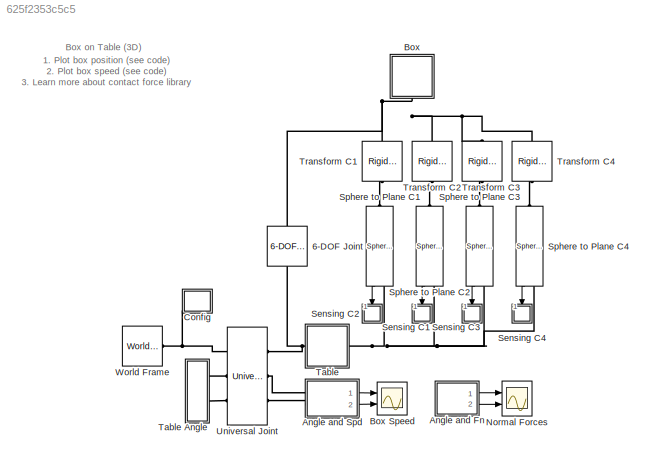
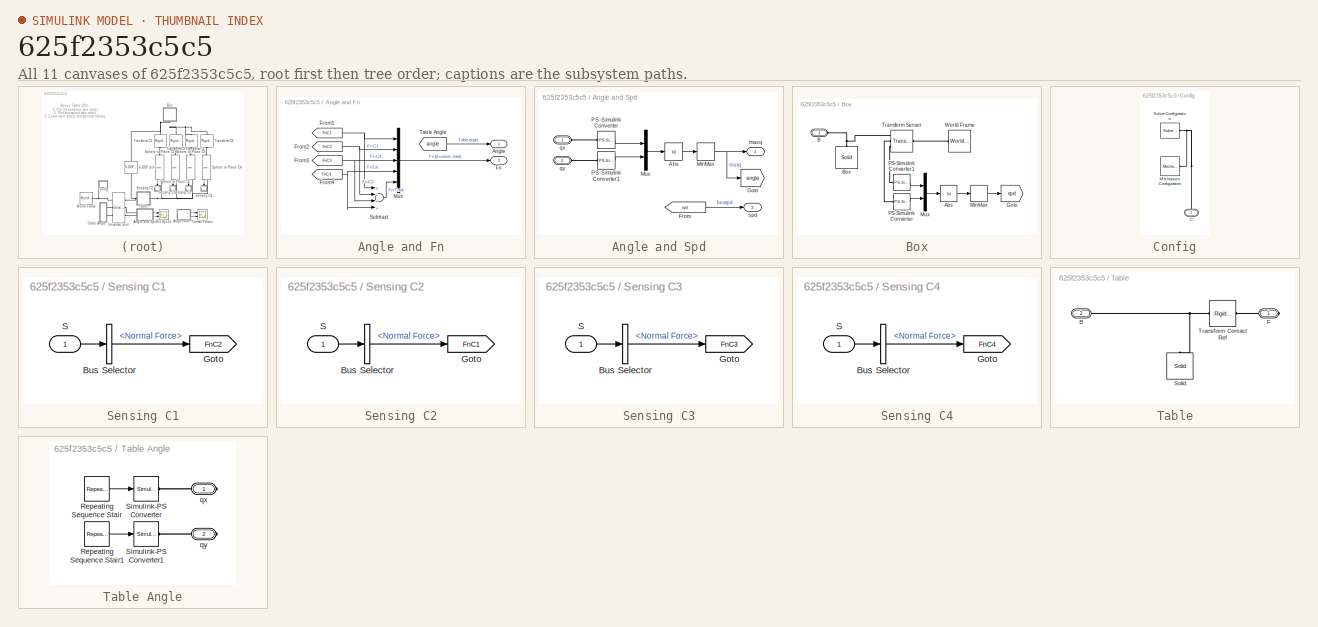
[diagram: thumbnail index - all 11 canvases of the model, root first then tree order]
MODEL slx_625f2353c5c5
KIND model
CONFIG StartFcn = tic;
CONFIG StopFcn = Elapsed_Sim_Time = toc;\ndisp(['Elapsed Sim Time = ' num2str(Elapsed_Sim_Time)]);\n
WORKSPACE source: MATLAB code (in-file)
WORKSPACE code: box.l = 0.3;
WORKSPACE code: box.h = 0.2;
WORKSPACE code: box.w = 0.3;
WORKSPACE code: table.l = 3;
WORKSPACE code: table.h = 0.1;
WORKSPACE code: table.w = 3;
WORKSPACE rad_contact_sphere = 0.005
WORKSPACE code: boxTable.friction.muk = 0.6;
WORKSPACE code: boxTable.friction.mus = 0.7;
BLOCK [Reference] 6-DOF Joint  REF=sm_lib/Joints/6-DOF Joint
  BlockFunction = simmechanics.library.joints.sixdof_joint
  ClassName = SixDofJoint
  CompositeWrenchDir = FollowerOnBase
  CompositeWrenchFrame = BaseFrame
  LogSimulationData = off
  Ports = [0, 0, 0, 0, 0, 1, 1]
  PxDampingCoefficient = 0
  PxDampingCoefficientUnits = N/(m/s)
  PxEquilibriumPosition = 0
  PxEquilibriumPositionUnits = m
  PxMotionActuationMode = ComputedMotion
  PxPositionTargetPriority = High
  PxPositionTargetSpecify = on
  PxPositionTargetValue = -0.25
  PxPositionTargetValueUnits = m
  PxSenseAcceleration = off
  PxSensePosition = off
  PxSenseTorqueForce = off
  PxSenseVelocity = off
  PxSpringStiffness = 0
  PxSpringStiffnessUnits = N/m
  PxTorqueActuationMode = NoTorque
  PxVelocityTargetPriority = High
  PxVelocityTargetSpecify = off
  PxVelocityTargetValue = 0
  PxVelocityTargetValueUnits = m/s
  PyDampingCoefficient = 0
  PyDampingCoefficientUnits = N/(m/s)
  PyEquilibriumPosition = 0
  PyEquilibriumPositionUnits = m
  PyMotionActuationMode = ComputedMotion
  PyPositionTargetPriority = High
  PyPositionTargetSpecify = on
  PyPositionTargetValue = 0.25
  PyPositionTargetValueUnits = m
  PySenseAcceleration = off
  PySensePosition = off
  PySenseTorqueForce = off
  PySenseVelocity = off
  PySpringStiffness = 0
  PySpringStiffnessUnits = N/m
  PyTorqueActuationMode = NoTorque
  PyVelocityTargetPriority = High
  PyVelocityTargetSpecify = off
  PyVelocityTargetValue = 0
  PyVelocityTargetValueUnits = m/s
  PzDampingCoefficient = 0
  PzDampingCoefficientUnits = N/(m/s)
  PzEquilibriumPosition = 0
  PzEquilibriumPositionUnits = m
  PzMotionActuationMode = ComputedMotion
  PzPositionTargetPriority = High
  PzPositionTargetSpecify = on
  PzPositionTargetValue = 2
  PzPositionTargetValueUnits = m
  PzSenseAcceleration = off
  PzSensePosition = off
  PzSenseTorqueForce = off
  PzSenseVelocity = off
  PzSpringStiffness = 0
  PzSpringStiffnessUnits = N/m
  PzTorqueActuationMode = NoTorque
  PzVelocityTargetPriority = High
  PzVelocityTargetSpecify = off
  PzVelocityTargetValue = 0
  PzVelocityTargetValueUnits = m/s
  SenseConstraintForce = off
  SenseConstraintForceX = off
  SenseConstraintForceY = off
  SenseConstraintForceZ = off
  SenseConstraintTorque = off
  SenseConstraintTorqueX = off
  SenseConstraintTorqueY = off
  SenseConstraintTorqueZ = off
  SenseTotalForce = off
  SenseTotalForceX = off
  SenseTotalForceY = off
  SenseTotalForceZ = off
  SenseTotalTorque = off
  SenseTotalTorqueX = off
  SenseTotalTorqueY = off
  SenseTotalTorqueZ = off
  SourceBlock = sm_lib/Joints/6-DOF Joint
  SourceType = 6-DOF Joint
  SphActuateTorque = off
  SphActuateTorqueX = off
  SphActuateTorqueY = off
  SphActuateTorqueZ = off
  SphActuationFrame = BaseFrame
  SphDampingCoefficient = 0
  SphDampingCoefficientUnits = N*m/(deg/s)
  SphDefPosBaseAlignAxisA = +Y
  SphDefPosBaseAlignAxisB = +Z
  SphDefPosFollAlignAxisA = +X
  SphDefPosFollAlignAxisB = +Y
  SphDefPosRotationAngle = 0.0
  SphDefPosRotationAngleUnits = deg
  SphDefPosRotationArbitraryAxis = [0 0 1]
  SphDefPosRotationMatrix = [1 0 0; 0 1 0; 0 0 1]
  SphDefPosRotationMethod = None
  SphDefPosRotationStandardAxis = +Z
  SphEqPosBaseAlignAxisA = +Y
  SphEqPosBaseAlignAxisB = +Z
  SphEqPosFollAlignAxisA = +X
  SphEqPosFollAlignAxisB = +Y
  SphEqPosRotationAngle = 0.0
  SphEqPosRotationAngleUnits = deg
  SphEqPosRotationArbitraryAxis = [0 0 1]
  SphEqPosRotationMatrix = [1 0 0; 0 1 0; 0 0 1]
  SphEqPosRotationMethod = None
  SphEqPosRotationStandardAxis = +Z
  SphMotionActuationMode = ComputedMotion
  SphPositionTargetBaseAlignAxisA = +Y
  SphPositionTargetBaseAlignAxisB = +Z
  SphPositionTargetFollAlignAxisA = +X
  SphPositionTargetFollAlignAxisB = +Y
  SphPositionTargetPriority = High
  SphPositionTargetRotationAngle = 0.0
  SphPositionTargetRotationAngleUnits = deg
  SphPositionTargetRotationArbitraryAxis = [0 0 1]
  SphPositionTargetRotationMatrix = [1 0 0; 0 1 0; 0 0 1]
  SphPositionTargetRotationMethod = None
  SphPositionTargetRotationStandardAxis = +Z
  SphPositionTargetSpecify = off
  SphSenseAcceleration = off
  SphSenseAccelerationX = off
  SphSenseAccelerationY = off
  SphSenseAccelerationZ = off
  SphSensePosition = off
  SphSenseTorqueForce = off
  SphSenseTorqueX = off
  SphSenseTorqueY = off
  SphSenseTorqueZ = off
  SphSenseVelocity = off
  SphSenseVelocityX = off
  SphSenseVelocityY = off
  SphSenseVelocityZ = off
  SphSensingFrame = BaseFrame
  SphSpringStiffness = 0
  SphSpringStiffnessUnits = N*m/deg
  SphTorqueActuationMode = NoTorque
  SphVelocityTargetInFollowerFrame = on
  SphVelocityTargetPriority = High
  SphVelocityTargetSpecify = off
  SphVelocityTargetValue = [0 0 0]
  SphVelocityTargetValueUnits = deg/s
BLOCK [SubSystem] Angle and Fn
  Ports = [0, 2]
  RequestExecContextInheritance = off
BLOCK [Outport] Angle and Fn/Angle
  IconDisplay = Port number
BLOCK [Outport] Angle and Fn/Fn
  IconDisplay = Port number
  Port = 2
BLOCK [From] Angle and Fn/From1
  GotoTag = FnC1
  TagVisibility = global
BLOCK [From] Angle and Fn/From2
  GotoTag = FnC2
  TagVisibility = global
BLOCK [From] Angle and Fn/From3
  GotoTag = FnC3
  TagVisibility = global
BLOCK [From] Angle and Fn/From4
  GotoTag = FnC4
  TagVisibility = global
BLOCK [Mux] Angle and Fn/Mux
  DisplayOption = bar
  Inputs = 5
  Ports = [5, 1]
BLOCK [Sum] Angle and Fn/Subtract
  InputSameDT = off
  Inputs = ++++
  OutDataTypeStr = Inherit: Inherit via internal rule
  Ports = [4, 1]
  SaturateOnIntegerOverflow = off
BLOCK [From] Angle and Fn/Table Angle
  GotoTag = angle
  TagVisibility = global
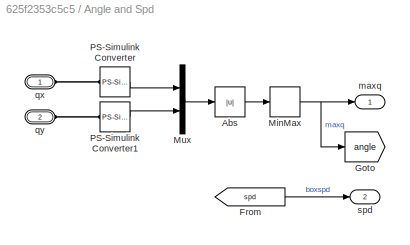
BLOCK [SubSystem] Angle and Spd
  Ports = [0, 2, 0, 0, 0, 2]
  RequestExecContextInheritance = off
BLOCK [Abs] Angle and Spd/Abs
  SaturateOnIntegerOverflow = off
  ZeroCross = off
BLOCK [From] Angle and Spd/From
  GotoTag = spd
  TagVisibility = global
BLOCK [Goto] Angle and Spd/Goto
  GotoTag = angle
  TagVisibility = global
BLOCK [MinMax] Angle and Spd/MinMax
  Function = max
  InputSameDT = off
  Ports = [1, 1]
  SaturateOnIntegerOverflow = off
  ZeroCross = off
BLOCK [Mux] Angle and Spd/Mux
  DisplayOption = bar
  Inputs = 2
  Ports = [2, 1]
BLOCK [Reference] Angle and Spd/PS-Simulink Converter  REF=nesl_utility/PS-Simulink
Converter
  AffineConversion = off
  Frequencies = []
  LeftPortType = input
  PhysicalDomain = network_engine_domain
  Ports = [0, 1, 0, 0, 0, 1]
  PseudoPeriodic = off
  RightPortType = output
  SourceBlock = nesl_utility/PS-Simulink\nConverter
  SourceType = PS-Simulink\nConverter
  SubClassName = ps_output
  Unit = deg
BLOCK [Reference] Angle and Spd/PS-Simulink Converter1  REF=nesl_utility/PS-Simulink
Converter
  AffineConversion = off
  Frequencies = []
  LeftPortType = input
  PhysicalDomain = network_engine_domain
  Ports = [0, 1, 0, 0, 0, 1]
  PseudoPeriodic = off
  RightPortType = output
  SourceBlock = nesl_utility/PS-Simulink\nConverter
  SourceType = PS-Simulink\nConverter
  SubClassName = ps_output
  Unit = deg
BLOCK [Outport] Angle and Spd/maxq
  IconDisplay = Port number
BLOCK [PMIOPort] Angle and Spd/qx
  Port = 1
  Side = Left
BLOCK [PMIOPort] Angle and Spd/qy
  Port = 2
  Side = Left
BLOCK [Outport] Angle and Spd/spd
  IconDisplay = Port number
  Port = 2
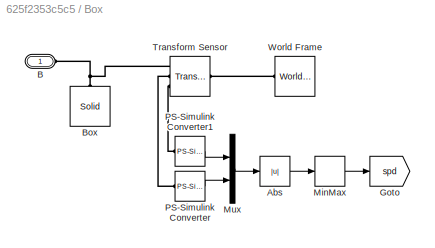
BLOCK [SubSystem] Box
  Ports = [0, 0, 0, 0, 0, 1]
  RequestExecContextInheritance = off
  Tag = CustomStyle
BLOCK [Scope] Box Speed
  DataFormat = StructureWithTime
  Floating = off
  LimitDataPoints = off
  NumInputPorts = 2
  Ports = [2]
  ShowLegends = off
  YMax = 40~1
  YMin = 0~0
  ZoomMode = yonly
BLOCK [Abs] Box/Abs
  SaturateOnIntegerOverflow = off
  ZeroCross = off
BLOCK [PMIOPort] Box/B
  Port = 1
  Side = Left
BLOCK [Reference] Box/Box  REF=sm_lib/Body Elements/Solid
  BlockFunction = simmechanics.library.body_elements.solid
  BrickDimensionUnits = m
  BrickDimensions = [box.l box.w box.h]
  CenterOfMass = [0 0 0]
  CenterOfMassUnits = m
  ClassName = Solid
  CylinderLength = 1
  CylinderLengthUnits = m
  CylinderRadius = 1
  CylinderRadiusUnits = m
  Density = 1000
  DensityBased = on
  DensityUnits = kg/(m^3)
  EllipsoidRadii = [1 1 1]
  EllipsoidRadiiUnits = m
  ExtGeomFileType = STL
  ExtGeomFileUnits = m
  ExtrusionCrossSection = [1 1; -1 1; -1 -1; 1 -1]
  ExtrusionCrossSectionUnits = m
  ExtrusionLength = 1
  ExtrusionLengthUnits = m
  GeometryShape = Brick
  GraphicAmbientColor = [0.15 0.15 0.15 1.0]
  GraphicDiffuseColor = [0.0 0.6 1.0]
  GraphicEmissiveColor = [0.0 0.0 0.0 1.0]
  GraphicOpacity = 1.0
  GraphicShininess = 75
  GraphicSpecularColor = [0.5 0.5 0.5 1.0]
  GraphicType = FromGeometry
  GraphicVisPropType = SimpleVisualProperties
  InertiaType = CalculateFromGeometry
  LogSimulationData = off
  MarkerShape = Sphere
  MarkerSize = 10
  MarkerSizeUnits = m
  Mass = 1
  MassUnits = kg
  MomentsOfInertia = [1 1 1]
  MomentsOfInertiaUnits = kg*m^2
  PolygonNumSides = 3
  PolygonOuterRadius = 1
  PolygonOuterRadiusUnits = m
  Ports = [0, 0, 0, 0, 0, 0, 1]
  ProductsOfInertia = [0 0 0]
  ProductsOfInertiaUnits = kg*m^2
  RectangleSize = [1 1]
  RectangleSizeUnits = m
  RevolutionAngle = 180
  RevolutionAngleUnits = deg
  RevolutionCrossSection = [1 1; 1 -1; 2 -1; 2 1]
  RevolutionCrossSectionUnits = m
  RevolutionExtent = Full
  SourceBlock = sm_lib/Body Elements/Solid
  SourceType = Solid
  SphereRadius = 1
  SphereRadiusUnits = m
BLOCK [Goto] Box/Goto
  GotoTag = spd
  TagVisibility = global
BLOCK [MinMax] Box/MinMax
  Function = max
  InputSameDT = off
  Ports = [1, 1]
  SaturateOnIntegerOverflow = off
  ZeroCross = off
BLOCK [Mux] Box/Mux
  DisplayOption = bar
  Inputs = 2
  Ports = [2, 1]
BLOCK [Reference] Box/PS-Simulink Converter  REF=nesl_utility/PS-Simulink
Converter
  AffineConversion = off
  Frequencies = []
  LeftPortType = input
  PhysicalDomain = network_engine_domain
  Ports = [0, 1, 0, 0, 0, 1]
  PseudoPeriodic = off
  RightPortType = output
  SourceBlock = nesl_utility/PS-Simulink\nConverter
  SourceType = PS-Simulink\nConverter
  SubClassName = ps_output
  Unit = 1
BLOCK [Reference] Box/PS-Simulink Converter1  REF=nesl_utility/PS-Simulink
Converter
  AffineConversion = off
  Frequencies = []
  LeftPortType = input
  PhysicalDomain = network_engine_domain
  Ports = [0, 1, 0, 0, 0, 1]
  PseudoPeriodic = off
  RightPortType = output
  SourceBlock = nesl_utility/PS-Simulink\nConverter
  SourceType = PS-Simulink\nConverter
  SubClassName = ps_output
  Unit = 1
BLOCK [Reference] Box/Transform Sensor  REF=sm_lib/Frames and
Transforms/Transform
Sensor
  BlockFunction = simmechanics.library.frames_transforms.transform_sensor
  ClassName = TransformSensor
  LogSimulationData = off
  MeasurementFrame = Follower
  Ports = [0, 0, 0, 0, 0, 1, 3]
  SenseAlpha1 = off
  SenseAlpha2 = off
  SenseAlpha3 = off
  SenseAlphaX = off
  SenseAlphaY = off
  SenseAlphaZ = off
  SenseAngle = off
  SenseAngle1 = off
  SenseAngle2 = off
  SenseAngle3 = off
  SenseAxis = off
  SenseAzim = off
  SenseAzimDDot = off
  SenseAzimDot = off
  SenseDist = off
  SenseDistDDot = off
  SenseDistDot = off
  SenseInc = off
  SenseIncDDot = off
  SenseIncDot = off
  SenseOmega1 = off
  SenseOmega2 = off
  SenseOmega3 = off
  SenseOmegaX = off
  SenseOmegaY = off
  SenseOmegaZ = off
  SenseQ = off
  SenseQDDot = off
  SenseQDot = off
  SenseR = off
  SenseRDDot = off
  SenseRDot = off
  SenseRad = off
  SenseRadDDot = off
  SenseRadDot = off
  SenseX = off
  SenseXDDot = off
  SenseXDot = on
  SenseY = off
  SenseYDDot = off
  SenseYDot = on
  SenseZ = off
  SenseZDDot = off
  SenseZDot = off
  SourceBlock = sm_lib/Frames and\nTransforms/Transform\nSensor
  SourceType = Transform\nSensor
BLOCK [Reference] Box/World Frame  REF=sm_lib/Frames and
Transforms/World Frame
  BlockFunction = simmechanics.library.frames_transforms.world_frame
  ClassName = WorldFrame
  LogSimulationData = off
  Ports = [0, 0, 0, 0, 0, 0, 1]
  SourceBlock = sm_lib/Frames and\nTransforms/World Frame
  SourceType = World Frame
BLOCK [SubSystem] Config
  Ports = [0, 0, 0, 0, 0, 1]
  RequestExecContextInheritance = off
BLOCK [PMIOPort] Config/C
  Port = 1
  Side = Left
BLOCK [Reference] Config/Mechanism Configuration  REF=sm_lib/Utilities/Mechanism
Configuration
  BlockFunction = simmechanics.library.utilities.mechanism_configuration
  ClassName = MechanismConfiguration
  GravityUnits = m/s^2
  GravityVector = [0 0 -9.80665]
  LinearizationDelta = 0.001
  LogSimulationData = off
  Ports = [0, 0, 0, 0, 0, 0, 1]
  SourceBlock = sm_lib/Utilities/Mechanism\nConfiguration
  SourceType = Mechanism\nConfiguration
  UniformGravity = Constant
BLOCK [Reference] Config/Solver Configuration  REF=nesl_utility/Solver
Configuration
  AbsTol = 1e-06
  Accelerate = off
  AutomaticFiltering = on
  DelaysMemoryBudget = 1024
  DoDC = off
  DoFixedCost = off
  EnableSwitchedLinearOptims = on
  FilteringTimeConstant = 0.001
  FrequencyDomain = off
  Harmonics = []
  LeftPortType = input
  LinearAlgebra = Sparse
  LocalSolverChoice = NE_BACKWARD_EULER_ADVANCER
  LocalSolverSampleTime = 0.001
  MaxModeIter = 2
  MaxNonlinIter = 3
  MinStep = 1e-09
  PhysicalDomain = network_engine_domain
  Ports = [0, 0, 0, 0, 0, 0, 1]
  Profile = off
  RelTol = 0.001
  ResidualTolerance = 1e-09
  RightPortType = generic
  SimulateNoise = off
  SourceBlock = nesl_utility/Solver\nConfiguration
  SourceType = Solver\nConfiguration
  SubClassName = solver
  ToWorkspace = off
  Tones = []
  UseCCode = off
  UseLocalSampling = off
  UseLocalSolver = off
BLOCK [Scope] Normal Forces
  DataFormat = StructureWithTime
  Floating = off
  LimitDataPoints = off
  NumInputPorts = 2
  Ports = [2]
  SaveName = ScopeData1
  ShowLegends = off
  YMax = 40~250
  YMin = 0~0
  ZoomMode = yonly
BLOCK [SubSystem] Sensing C1
  Ports = [1]
  RequestExecContextInheritance = off
BLOCK [BusSelector] Sensing C1/Bus Selector
  OutputSignals = Normal Force
  Ports = [1, 1]
BLOCK [Goto] Sensing C1/Goto
  GotoTag = FnC2
  TagVisibility = global
BLOCK [Inport] Sensing C1/S
  IconDisplay = Port number
BLOCK [SubSystem] Sensing C2
  Ports = [1]
  RequestExecContextInheritance = off
BLOCK [BusSelector] Sensing C2/Bus Selector
  OutputSignals = Normal Force
  Ports = [1, 1]
BLOCK [Goto] Sensing C2/Goto
  GotoTag = FnC1
  TagVisibility = global
BLOCK [Inport] Sensing C2/S
  IconDisplay = Port number
BLOCK [SubSystem] Sensing C3
  Ports = [1]
  RequestExecContextInheritance = off
BLOCK [BusSelector] Sensing C3/Bus Selector
  OutputSignals = Normal Force
  Ports = [1, 1]
BLOCK [Goto] Sensing C3/Goto
  GotoTag = FnC3
  TagVisibility = global
BLOCK [Inport] Sensing C3/S
  IconDisplay = Port number
BLOCK [SubSystem] Sensing C4
  Ports = [1]
  RequestExecContextInheritance = off
BLOCK [BusSelector] Sensing C4/Bus Selector
  OutputSignals = Normal Force
  Ports = [1, 1]
BLOCK [Goto] Sensing C4/Goto
  GotoTag = FnC4
  TagVisibility = global
BLOCK [Inport] Sensing C4/S
  IconDisplay = Port number
BLOCK [Reference] Sphere to Plane C1  REF=Contact_Forces_Lib/3D/Sphere to Plane Force
  Ports = [0, 1, 0, 0, 0, 1, 1]
  SourceBlock = Contact_Forces_Lib/3D/Sphere to Plane Force
  SourceType = Sphere to Plane Force
  b_contact = 1e3
  custom_param_1 = 1
  custom_param_2 = 1
  force_law = Linear
  friction_law = Stick-Slip Continuous
  k_contact = 1e5
  mu_kinetic = boxTable.friction.muk
  mu_static = boxTable.friction.mus
  pen_exponent = 1
  pen_full_damp_F = 1e-4
  plane_depth = table.h/2
  plane_lenx = table.l
  plane_leny = table.w
  sphere_rad = rad_contact_sphere
  v_thr = 0.001
BLOCK [Reference] Sphere to Plane C2  REF=Contact_Forces_Lib/3D/Sphere to Plane Force
  Ports = [0, 1, 0, 0, 0, 1, 1]
  SourceBlock = Contact_Forces_Lib/3D/Sphere to Plane Force
  SourceType = Sphere to Plane Force
  b_contact = 1e3
  custom_param_1 = 1
  custom_param_2 = 1
  force_law = Linear
  friction_law = Stick-Slip Continuous
  k_contact = 1e5
  mu_kinetic = boxTable.friction.muk
  mu_static = boxTable.friction.mus
  pen_exponent = 1
  pen_full_damp_F = 1e-4
  plane_depth = table.h/2
  plane_lenx = table.l
  plane_leny = table.w
  sphere_rad = rad_contact_sphere
  v_thr = 0.001
BLOCK [Reference] Sphere to Plane C3  REF=Contact_Forces_Lib/3D/Sphere to Plane Force
  Ports = [0, 1, 0, 0, 0, 1, 1]
  SourceBlock = Contact_Forces_Lib/3D/Sphere to Plane Force
  SourceType = Sphere to Plane Force
  b_contact = 1e3
  custom_param_1 = 1
  custom_param_2 = 1
  force_law = Linear
  friction_law = Stick-Slip Continuous
  k_contact = 1e5
  mu_kinetic = boxTable.friction.muk
  mu_static = boxTable.friction.mus
  pen_exponent = 1
  pen_full_damp_F = 1e-4
  plane_depth = table.h/2
  plane_lenx = table.l
  plane_leny = table.w
  sphere_rad = rad_contact_sphere
  v_thr = 0.001
BLOCK [Reference] Sphere to Plane C4  REF=Contact_Forces_Lib/3D/Sphere to Plane Force
  Ports = [0, 1, 0, 0, 0, 1, 1]
  SourceBlock = Contact_Forces_Lib/3D/Sphere to Plane Force
  SourceType = Sphere to Plane Force
  b_contact = 1e3
  custom_param_1 = 1
  custom_param_2 = 1
  force_law = Linear
  friction_law = Stick-Slip Continuous
  k_contact = 1e5
  mu_kinetic = boxTable.friction.muk
  mu_static = boxTable.friction.mus
  pen_exponent = 1
  pen_full_damp_F = 1e-4
  plane_depth = table.h/2
  plane_lenx = table.l
  plane_leny = table.w
  sphere_rad = rad_contact_sphere
  v_thr = 0.001
BLOCK [SubSystem] Table
  Ports = [0, 0, 0, 0, 0, 1, 1]
  RequestExecContextInheritance = off
  Tag = CustomStyle
BLOCK [SubSystem] Table Angle
  Ports = [0, 0, 0, 0, 0, 0, 2]
  RequestExecContextInheritance = off
BLOCK [Reference] Table Angle/Repeating Sequence Stair  REF=simulink/Sources/Repeating
Sequence
Stair
  ConRadixGroup = Best Precision: Vector-wise
  LockScale = off
  OutDataType = fixdt(0,8)
  OutDataTypeStr = double
  OutMax = []
  OutMin = []
  OutScaling = 2^-12
  OutValues = [0 1 0 0 0 -1 0 0].'*35.1
  OutputDataTypeScalingMode = double
  Ports = [0, 1]
  SourceBlock = simulink/Sources/Repeating\nSequence\nStair
  SourceType = Repeating Sequence Stair
  tsamp = 4
BLOCK [Reference] Table Angle/Repeating Sequence Stair1  REF=simulink/Sources/Repeating
Sequence
Stair
  ConRadixGroup = Best Precision: Vector-wise
  LockScale = off
  OutDataType = fixdt(0,8)
  OutDataTypeStr = double
  OutMax = []
  OutMin = []
  OutScaling = 2^-12
  OutValues = [0 0 0 1 0 0 0 -1].'*35.1
  OutputDataTypeScalingMode = double
  Ports = [0, 1]
  SourceBlock = simulink/Sources/Repeating\nSequence\nStair
  SourceType = Repeating Sequence Stair
  tsamp = 4
BLOCK [Reference] Table Angle/Simulink-PS Converter  REF=nesl_utility/Simulink-PS
Converter
  AffineConversion = off
  Frequencies = []
  InputFilterTimeConstant = 0.4
  InputFiltering = on
  LeftPortType = input
  NoiseDistribution = none
  NoiseParameters = []
  PhysicalDomain = network_engine_domain
  Ports = [1, 0, 0, 0, 0, 0, 1]
  PseudoPeriodic = off
  RightPortType = output
  SimscapeFilterOrder = 2
  SourceBlock = nesl_utility/Simulink-PS\nConverter
  SourceType = Simulink-PS\nConverter
  SubClassName = ps_input
  UdotUserProvided = 1
  Unit = deg
BLOCK [Reference] Table Angle/Simulink-PS Converter1  REF=nesl_utility/Simulink-PS
Converter
  AffineConversion = off
  Frequencies = []
  InputFilterTimeConstant = 0.4
  InputFiltering = on
  LeftPortType = input
  NoiseDistribution = none
  NoiseParameters = []
  PhysicalDomain = network_engine_domain
  Ports = [1, 0, 0, 0, 0, 0, 1]
  PseudoPeriodic = off
  RightPortType = output
  SimscapeFilterOrder = 2
  SourceBlock = nesl_utility/Simulink-PS\nConverter
  SourceType = Simulink-PS\nConverter
  SubClassName = ps_input
  UdotUserProvided = 1
  Unit = deg
BLOCK [PMIOPort] Table Angle/qx
  Port = 1
  Side = Right
BLOCK [PMIOPort] Table Angle/qy
  Port = 2
  Side = Right
BLOCK [PMIOPort] Table/B
  Port = 2
  Side = Left
BLOCK [PMIOPort] Table/F
  Port = 1
  Side = Right
BLOCK [Reference] Table/Solid  REF=sm_lib/Body Elements/Solid
  BlockFunction = simmechanics.library.body_elements.solid
  BrickDimensionUnits = m
  BrickDimensions = [table.l table.w table.h]
  CenterOfMass = [0 0 0]
  CenterOfMassUnits = m
  ClassName = Solid
  CylinderLength = 1
  CylinderLengthUnits = m
  CylinderRadius = 1
  CylinderRadiusUnits = m
  Density = 1000
  DensityBased = on
  DensityUnits = kg/(m^3)
  EllipsoidRadii = [1 1 1]
  EllipsoidRadiiUnits = m
  ExtGeomFileType = STL
  ExtGeomFileUnits = m
  ExtrusionCrossSection = [1 1; -1 1; -1 -1; 1 -1]
  ExtrusionCrossSectionUnits = m
  ExtrusionLength = 1
  ExtrusionLengthUnits = m
  GeometryShape = Brick
  GraphicAmbientColor = [0.15 0.15 0.15 1.0]
  GraphicDiffuseColor = [0.5 0.5 0.5]
  GraphicEmissiveColor = [0.0 0.0 0.0 1.0]
  GraphicOpacity = 1.0
  GraphicShininess = 75
  GraphicSpecularColor = [0.5 0.5 0.5 1.0]
  GraphicType = FromGeometry
  GraphicVisPropType = SimpleVisualProperties
  InertiaType = CalculateFromGeometry
  LogSimulationData = off
  MarkerShape = Sphere
  MarkerSize = 10
  MarkerSizeUnits = m
  Mass = 1
  MassUnits = kg
  MomentsOfInertia = [1 1 1]
  MomentsOfInertiaUnits = kg*m^2
  PolygonNumSides = 3
  PolygonOuterRadius = 1
  PolygonOuterRadiusUnits = m
  Ports = [0, 0, 0, 0, 0, 0, 1]
  ProductsOfInertia = [0 0 0]
  ProductsOfInertiaUnits = kg*m^2
  RectangleSize = [1 1]
  RectangleSizeUnits = m
  RevolutionAngle = 180
  RevolutionAngleUnits = deg
  RevolutionCrossSection = [1 1; 1 -1; 2 -1; 2 1]
  RevolutionCrossSectionUnits = m
  RevolutionExtent = Full
  SourceBlock = sm_lib/Body Elements/Solid
  SourceType = Solid
  SphereRadius = 1
  SphereRadiusUnits = m
BLOCK [Reference] Table/Transform Contact Ref  REF=sm_lib/Frames and
Transforms/Rigid
Transform
  BaseAlignAxisA = +Y
  BaseAlignAxisB = +Z
  BlockFunction = simmechanics.library.frames_transforms.rigid_transform
  ClassName = RigidTransform
  FollAlignAxisA = +X
  FollAlignAxisB = +Y
  LogSimulationData = off
  Ports = [0, 0, 0, 0, 0, 1, 1]
  RotationAngle = 90
  RotationAngleUnits = deg
  RotationArbitraryAxis = [0 0 1]
  RotationMatrix = [1 0 0; 0 1 0; 0 0 1]
  RotationMethod = StandardAxis
  RotationStandardAxis = +Z
  SourceBlock = sm_lib/Frames and\nTransforms/Rigid\nTransform
  SourceType = Rigid\nTransform
  TranslationCartesianOffset = [0 0 0]
  TranslationLengthUnit = m
  TranslationMethod = None
  TranslationROffset = 0
  TranslationROffsetUnits = m
  TranslationStandardAxis = +X
  TranslationStandardOffset = 3/2
  TranslationThetaOffset = 0
  TranslationThetaOffsetUnits = deg
  TranslationZOffset = 0
  TranslationZOffsetUnits = m
BLOCK [Reference] Transform C1  REF=sm_lib/Frames and
Transforms/Rigid
Transform
  BaseAlignAxisA = +Y
  BaseAlignAxisB = +Z
  BlockFunction = simmechanics.library.frames_transforms.rigid_transform
  ClassName = RigidTransform
  FollAlignAxisA = +X
  FollAlignAxisB = +Y
  LogSimulationData = off
  Ports = [0, 0, 0, 0, 0, 1, 1]
  RotationAngle = 0
  RotationAngleUnits = deg
  RotationArbitraryAxis = [0 0 1]
  RotationMatrix = [1 0 0; 0 1 0; 0 0 1]
  RotationMethod = None
  RotationStandardAxis = +Z
  SourceBlock = sm_lib/Frames and\nTransforms/Rigid\nTransform
  SourceType = Rigid\nTransform
  TranslationCartesianOffset = [box.l/2-rad_contact_sphere -(box.w/2-rad_contact_sphere) -(box.h/2-rad_contact_sphere)]
  TranslationLengthUnit = m
  TranslationMethod = Cartesian
  TranslationROffset = 0
  TranslationROffsetUnits = m
  TranslationStandardAxis = +Z
  TranslationStandardOffset = 0
  TranslationThetaOffset = 0
  TranslationThetaOffsetUnits = deg
  TranslationZOffset = 0
  TranslationZOffsetUnits = m
BLOCK [Reference] Transform C2  REF=sm_lib/Frames and
Transforms/Rigid
Transform
  BaseAlignAxisA = +Y
  BaseAlignAxisB = +Z
  BlockFunction = simmechanics.library.frames_transforms.rigid_transform
  ClassName = RigidTransform
  FollAlignAxisA = +X
  FollAlignAxisB = +Y
  LogSimulationData = off
  Ports = [0, 0, 0, 0, 0, 1, 1]
  RotationAngle = 0
  RotationAngleUnits = deg
  RotationArbitraryAxis = [0 0 1]
  RotationMatrix = [1 0 0; 0 1 0; 0 0 1]
  RotationMethod = None
  RotationStandardAxis = +Z
  SourceBlock = sm_lib/Frames and\nTransforms/Rigid\nTransform
  SourceType = Rigid\nTransform
  TranslationCartesianOffset = [box.l/2-rad_contact_sphere (box.w/2-rad_contact_sphere) -(box.h/2-rad_contact_sphere)]
  TranslationLengthUnit = m
  TranslationMethod = Cartesian
  TranslationROffset = 0
  TranslationROffsetUnits = m
  TranslationStandardAxis = +Z
  TranslationStandardOffset = 0
  TranslationThetaOffset = 0
  TranslationThetaOffsetUnits = deg
  TranslationZOffset = 0
  TranslationZOffsetUnits = m
BLOCK [Reference] Transform C3  REF=sm_lib/Frames and
Transforms/Rigid
Transform
  BaseAlignAxisA = +Y
  BaseAlignAxisB = +Z
  BlockFunction = simmechanics.library.frames_transforms.rigid_transform
  ClassName = RigidTransform
  FollAlignAxisA = +X
  FollAlignAxisB = +Y
  LogSimulationData = off
  Ports = [0, 0, 0, 0, 0, 1, 1]
  RotationAngle = 0
  RotationAngleUnits = deg
  RotationArbitraryAxis = [0 0 1]
  RotationMatrix = [1 0 0; 0 1 0; 0 0 1]
  RotationMethod = None
  RotationStandardAxis = +Z
  SourceBlock = sm_lib/Frames and\nTransforms/Rigid\nTransform
  SourceType = Rigid\nTransform
  TranslationCartesianOffset = [-(box.l/2-rad_contact_sphere) (box.w/2-rad_contact_sphere) -(box.h/2-rad_contact_sphere)]
  TranslationLengthUnit = m
  TranslationMethod = Cartesian
  TranslationROffset = 0
  TranslationROffsetUnits = m
  TranslationStandardAxis = +Z
  TranslationStandardOffset = 0
  TranslationThetaOffset = 0
  TranslationThetaOffsetUnits = deg
  TranslationZOffset = 0
  TranslationZOffsetUnits = m
BLOCK [Reference] Transform C4  REF=sm_lib/Frames and
Transforms/Rigid
Transform
  BaseAlignAxisA = +Y
  BaseAlignAxisB = +Z
  BlockFunction = simmechanics.library.frames_transforms.rigid_transform
  ClassName = RigidTransform
  FollAlignAxisA = +X
  FollAlignAxisB = +Y
  LogSimulationData = off
  Ports = [0, 0, 0, 0, 0, 1, 1]
  RotationAngle = 0
  RotationAngleUnits = deg
  RotationArbitraryAxis = [0 0 1]
  RotationMatrix = [1 0 0; 0 1 0; 0 0 1]
  RotationMethod = None
  RotationStandardAxis = +Z
  SourceBlock = sm_lib/Frames and\nTransforms/Rigid\nTransform
  SourceType = Rigid\nTransform
  TranslationCartesianOffset = [-(box.l/2-rad_contact_sphere) -(box.w/2-rad_contact_sphere) -(box.h/2-rad_contact_sphere)]
  TranslationLengthUnit = m
  TranslationMethod = Cartesian
  TranslationROffset = 0
  TranslationROffsetUnits = m
  TranslationStandardAxis = +Z
  TranslationStandardOffset = 0
  TranslationThetaOffset = 0
  TranslationThetaOffsetUnits = deg
  TranslationZOffset = 0
  TranslationZOffsetUnits = m
BLOCK [Reference] Universal Joint  REF=sm_lib/Joints/Universal
Joint
  BlockFunction = simmechanics.library.joints.universal_joint
  ClassName = UniversalJoint
  CompositeWrenchDir = FollowerOnBase
  CompositeWrenchFrame = BaseFrame
  LogSimulationData = off
  Ports = [0, 0, 0, 0, 0, 3, 3]
  RxDampingCoefficient = 0
  RxDampingCoefficientUnits = N*m/(deg/s)
  RxEquilibriumPosition = 0
  RxEquilibriumPositionUnits = deg
  RxMotionActuationMode = InputMotion
  RxPositionTargetPriority = High
  RxPositionTargetSpecify = off
  RxPositionTargetValue = 0
  RxPositionTargetValueUnits = deg
  RxSenseAcceleration = off
  RxSensePosition = on
  RxSenseTorqueForce = off
  RxSenseVelocity = off
  RxSpringStiffness = 0
  RxSpringStiffnessUnits = N*m/deg
  RxTorqueActuationMode = ComputedTorque
  RxVelocityTargetPriority = High
  RxVelocityTargetSpecify = off
  RxVelocityTargetValue = 0
  RxVelocityTargetValueUnits = deg/s
  RyDampingCoefficient = 0
  RyDampingCoefficientUnits = N*m/(deg/s)
  RyEquilibriumPosition = 0
  RyEquilibriumPositionUnits = deg
  RyMotionActuationMode = InputMotion
  RyPositionTargetPriority = High
  RyPositionTargetSpecify = off
  RyPositionTargetValue = 0
  RyPositionTargetValueUnits = deg
  RySenseAcceleration = off
  RySensePosition = on
  RySenseTorqueForce = off
  RySenseVelocity = off
  RySpringStiffness = 0
  RySpringStiffnessUnits = N*m/deg
  RyTorqueActuationMode = ComputedTorque
  RyVelocityTargetPriority = High
  RyVelocityTargetSpecify = off
  RyVelocityTargetValue = 0
  RyVelocityTargetValueUnits = deg/s
  SenseConstraintForce = off
  SenseConstraintForceX = off
  SenseConstraintForceY = off
  SenseConstraintForceZ = off
  SenseConstraintTorque = off
  SenseConstraintTorqueX = off
  SenseConstraintTorqueY = off
  SenseConstraintTorqueZ = off
  SenseTotalForce = off
  SenseTotalForceX = off
  SenseTotalForceY = off
  SenseTotalForceZ = off
  SenseTotalTorque = off
  SenseTotalTorqueX = off
  SenseTotalTorqueY = off
  SenseTotalTorqueZ = off
  SourceBlock = sm_lib/Joints/Universal\nJoint
  SourceType = Universal\nJoint
BLOCK [Reference] World Frame  REF=sm_lib/Frames and
Transforms/World Frame
  BlockFunction = simmechanics.library.frames_transforms.world_frame
  ClassName = WorldFrame
  LogSimulationData = off
  Ports = [0, 0, 0, 0, 0, 0, 1]
  SourceBlock = sm_lib/Frames and\nTransforms/World Frame
  SourceType = World Frame
ANNOTATION (root): 1. Plot box position ( see code ) 2. Plot box speed ( see code ) 3. Learn more about contact force library
ANNOTATION (root): Box on Table (3D)
NET Angle and Fn/From1:1 -> Angle and Fn/Mux:1, Angle and Fn/Subtract:1
NET Angle and Fn/From2:1 -> Angle and Fn/Mux:2, Angle and Fn/Subtract:2
NET Angle and Fn/From3:1 -> Angle and Fn/Mux:3, Angle and Fn/Subtract:3
NET Angle and Fn/From4:1 -> Angle and Fn/Mux:4, Angle and Fn/Subtract:4
LINE Angle and Fn/Mux:1 -> Angle and Fn/Fn:1
LINE Angle and Fn/Subtract:1 -> Angle and Fn/Mux:5
LINE Angle and Fn/Table Angle:1 -> Angle and Fn/Angle:1
LINE Angle and Fn:1 -> Normal Forces:1
LINE Angle and Fn:2 -> Normal Forces:2
LINE Angle and Spd/Abs:1 -> Angle and Spd/MinMax:1
LINE Angle and Spd/From:1 -> Angle and Spd/spd:1
NET Angle and Spd/MinMax:1 -> Angle and Spd/Goto:1, Angle and Spd/maxq:1
LINE Angle and Spd/Mux:1 -> Angle and Spd/Abs:1
LINE Angle and Spd/PS-Simulink Converter1:1 -> Angle and Spd/Mux:2
LINE Angle and Spd/PS-Simulink Converter:1 -> Angle and Spd/Mux:1
LINE Angle and Spd:1 -> Box Speed:1
LINE Angle and Spd:2 -> Box Speed:2
LINE Box/Abs:1 -> Box/MinMax:1
LINE Box/MinMax:1 -> Box/Goto:1
LINE Box/Mux:1 -> Box/Abs:1
LINE Box/PS-Simulink Converter1:1 -> Box/Mux:1
LINE Box/PS-Simulink Converter:1 -> Box/Mux:2
LINE Sensing C1/Bus Selector:1 -> Sensing C1/Goto:1
LINE Sensing C1/S:1 -> Sensing C1/Bus Selector:1
LINE Sensing C2/Bus Selector:1 -> Sensing C2/Goto:1
LINE Sensing C2/S:1 -> Sensing C2/Bus Selector:1
LINE Sensing C3/Bus Selector:1 -> Sensing C3/Goto:1
LINE Sensing C3/S:1 -> Sensing C3/Bus Selector:1
LINE Sensing C4/Bus Selector:1 -> Sensing C4/Goto:1
LINE Sensing C4/S:1 -> Sensing C4/Bus Selector:1
LINE Sphere to Plane C1:1 -> Sensing C2:1
LINE Sphere to Plane C2:1 -> Sensing C1:1
LINE Sphere to Plane C3:1 -> Sensing C3:1
LINE Sphere to Plane C4:1 -> Sensing C4:1
LINE Table Angle/Repeating Sequence Stair1:1 -> Table Angle/Simulink-PS Converter1:1
LINE Table Angle/Repeating Sequence Stair:1 -> Table Angle/Simulink-PS Converter:1
PNET net1: 6-DOF Joint:LConn1 -- Table:LConn1 -- Universal Joint:RConn1
PNET net2: 6-DOF Joint:RConn1 -- Box:LConn1 -- Transform C1:LConn1 -- Transform C2:LConn1 -- Transform C3:LConn1 -- Transform C4:LConn1
PLINE Angle and Spd/PS-Simulink Converter1:LConn1 -- Angle and Spd/qy:RConn1
PLINE Angle and Spd/PS-Simulink Converter:LConn1 -- Angle and Spd/qx:RConn1
PLINE Angle and Spd:LConn1 -- Universal Joint:RConn2
PLINE Angle and Spd:LConn2 -- Universal Joint:RConn3
PNET net3: Box/B:RConn1 -- Box/Box:RConn1 -- Box/Transform Sensor:RConn1
PLINE Box/PS-Simulink Converter1:LConn1 -- Box/Transform Sensor:RConn3
PLINE Box/PS-Simulink Converter:LConn1 -- Box/Transform Sensor:RConn2
PLINE Box/Transform Sensor:LConn1 -- Box/World Frame:RConn1
PNET net4: Config/C:RConn1 -- Config/Mechanism Configuration:RConn1 -- Config/Solver Configuration:RConn1
PNET net5: Config:LConn1 -- Universal Joint:LConn1 -- World Frame:RConn1
PLINE Sphere to Plane C1:LConn1 -- Transform C1:RConn1
PNET net6: Sphere to Plane C1:RConn1 -- Sphere to Plane C2:RConn1 -- Sphere to Plane C3:RConn1 -- Sphere to Plane C4:RConn1 -- Table:RConn1
PLINE Sphere to Plane C2:LConn1 -- Transform C2:RConn1
PLINE Sphere to Plane C3:LConn1 -- Transform C3:RConn1
PLINE Sphere to Plane C4:LConn1 -- Transform C4:RConn1
PLINE Table Angle/Simulink-PS Converter1:RConn1 -- Table Angle/qy:RConn1
PLINE Table Angle/Simulink-PS Converter:RConn1 -- Table Angle/qx:RConn1
PLINE Table Angle:RConn1 -- Universal Joint:LConn2
PLINE Table Angle:RConn2 -- Universal Joint:LConn3
PNET net7: Table/B:RConn1 -- Table/Solid:RConn1 -- Table/Transform Contact Ref:LConn1
PLINE Table/F:RConn1 -- Table/Transform Contact Ref:RConn1
note: NET lines group one-source signal fan-out (src -> all destinations, sorted); 1:1 wires keep LINE; PNET lines group multi-terminal physical nets as a canonical sorted terminal list (undirected conserving connections); 2-terminal nets keep the pairwise PLINE form
